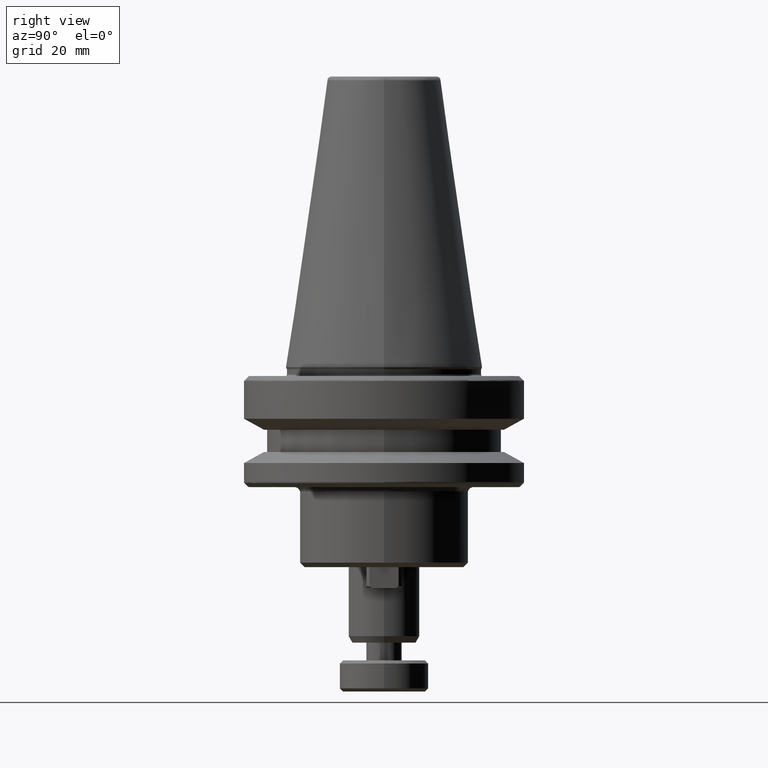
[diagram: clean part render]
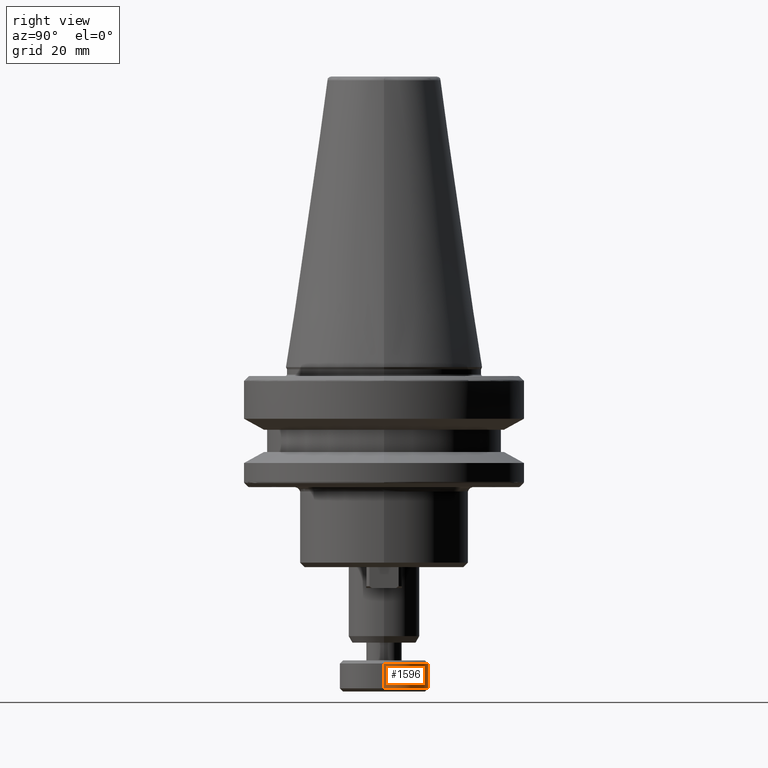
[diagram: same view with one face highlighted and labeled with its STEP entity id]
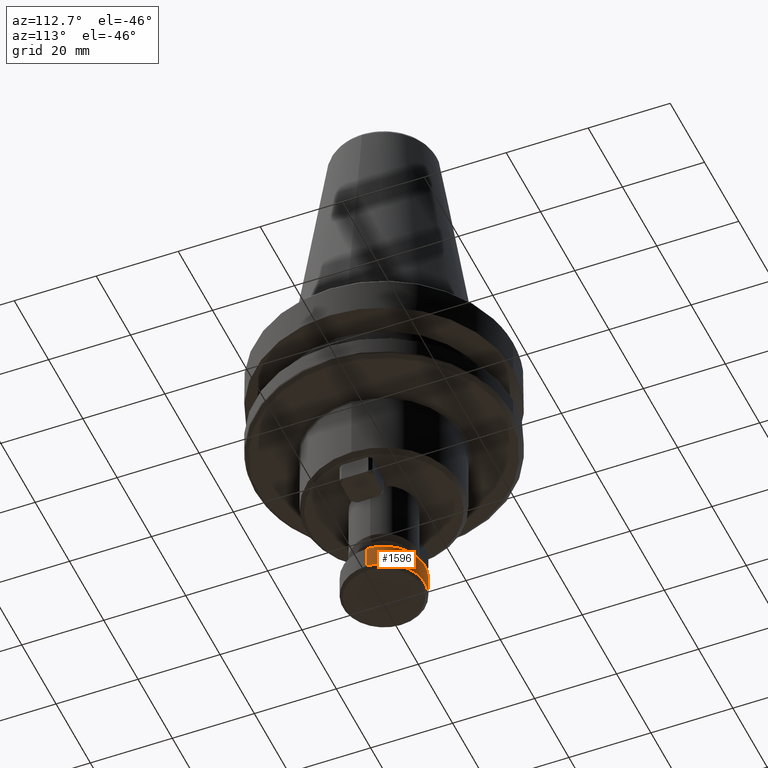
[diagram: same view with one face highlighted and labeled with its STEP entity id]
A machine part, right view. The second image highlights one B-rep face of the part: STEP entity #1596.
A second angle (auxiliary view) of the same face is appended — the face is thin or edge-on in the first view.
In plain terms, the highlighted cylindrical surface (partial cylindrical patch) has radius 10 mm, axis along (0, 0, 1).
Its self-contained STEP definition (entity closure, byte-faithful):
#14 = FACE_OUTER_BOUND ( 'NONE', #1788, .T. ) ;
#190 = VERTEX_POINT ( 'NONE', #3040 ) ;
#219 = CARTESIAN_POINT ( 'NONE',  ( 10.00000000000000000, 0.0000000000000000000, -72.29999999999999700 ) ) ;
#271 = DIRECTION ( 'NONE',  ( 1.000000000000000000, 0.0000000000000000000, 2.775557561562891400E-015 ) ) ;
#432 = EDGE_CURVE ( 'NONE', #1004, #190, #1391, .T. ) ;
#561 = CARTESIAN_POINT ( 'NONE',  ( -10.00000000000000000, 1.224646799147353300E-015, -72.30000000000002600 ) ) ;
#731 = VECTOR ( 'NONE', #3027, 1000.000000000000000 ) ;
#897 = VERTEX_POINT ( 'NONE', #561 ) ;
#928 = AXIS2_PLACEMENT_3D ( 'NONE', #3859, #2045, #271 ) ;
#1004 = VERTEX_POINT ( 'NONE', #2546 ) ;
#1303 = EDGE_CURVE ( 'NONE', #1659, #1004, #1972, .T. ) ;
#1367 = DIRECTION ( 'NONE',  ( 0.0000000000000000000, 0.0000000000000000000, 1.000000000000000000 ) ) ;
#1373 = DIRECTION ( 'NONE',  ( 0.0000000000000000000, 0.0000000000000000000, 1.000000000000000000 ) ) ;
#1391 = CIRCLE ( 'NONE', #3124, 10.00000000000000000 ) ;
#1421 = CIRCLE ( 'NONE', #928, 10.00000000000000000 ) ;
#1596 = ADVANCED_FACE ( 'NONE', ( #14 ), #3824, .T. ) ;
#1628 = CARTESIAN_POINT ( 'NONE',  ( -10.00000000000000000, 1.224646799147353300E-015, -72.29999999999999700 ) ) ;
#1653 = DIRECTION ( 'NONE',  ( 1.000000000000000000, 0.0000000000000000000, 0.0000000000000000000 ) ) ;
#1659 = VERTEX_POINT ( 'NONE', #219 ) ;
#1686 = LINE ( 'NONE', #1628, #3668 ) ;
#1764 = EDGE_CURVE ( 'NONE', #1659, #897, #1421, .T. ) ;
#1788 = EDGE_LOOP ( 'NONE', ( #1797, #2164, #3818, #1844 ) ) ;
#1797 = ORIENTED_EDGE ( 'NONE', *, *, #1764, .T. ) ;
#1844 = ORIENTED_EDGE ( 'NONE', *, *, #1303, .F. ) ;
#1972 = LINE ( 'NONE', #2676, #731 ) ;
#2045 = DIRECTION ( 'NONE',  ( 0.0000000000000000000, 0.0000000000000000000, 1.000000000000000000 ) ) ;
#2164 = ORIENTED_EDGE ( 'NONE', *, *, #2636, .T. ) ;
#2224 = DIRECTION ( 'NONE',  ( 0.0000000000000000000, 0.0000000000000000000, 1.000000000000000000 ) ) ;
#2252 = CARTESIAN_POINT ( 'NONE',  ( 0.0000000000000000000, 0.0000000000000000000, -72.29999999999999700 ) ) ;
#2546 = CARTESIAN_POINT ( 'NONE',  ( 10.00000000000000000, 1.224646799147353300E-015, -66.70000000000000300 ) ) ;
#2636 = EDGE_CURVE ( 'NONE', #897, #190, #1686, .T. ) ;
#2676 = CARTESIAN_POINT ( 'NONE',  ( 10.00000000000000000, 0.0000000000000000000, -72.29999999999999700 ) ) ;
#3027 = DIRECTION ( 'NONE',  ( 0.0000000000000000000, 0.0000000000000000000, 1.000000000000000000 ) ) ;
#3040 = CARTESIAN_POINT ( 'NONE',  ( -10.00000000000000000, 0.0000000000000000000, -66.70000000000000300 ) ) ;
#3124 = AXIS2_PLACEMENT_3D ( 'NONE', #3472, #1373, #3176 ) ;
#3176 = DIRECTION ( 'NONE',  ( 1.000000000000000000, 0.0000000000000000000, 0.0000000000000000000 ) ) ;
#3472 = CARTESIAN_POINT ( 'NONE',  ( 0.0000000000000000000, 0.0000000000000000000, -66.70000000000000300 ) ) ;
#3613 = AXIS2_PLACEMENT_3D ( 'NONE', #2252, #1367, #1653 ) ;
#3668 = VECTOR ( 'NONE', #2224, 1000.000000000000000 ) ;
#3818 = ORIENTED_EDGE ( 'NONE', *, *, #432, .F. ) ;
#3824 = CYLINDRICAL_SURFACE ( 'NONE', #3613, 10.00000000000000000 ) ;
#3859 = CARTESIAN_POINT ( 'NONE',  ( 0.0000000000000000000, 0.0000000000000000000, -72.30000000000002600 ) ) ;